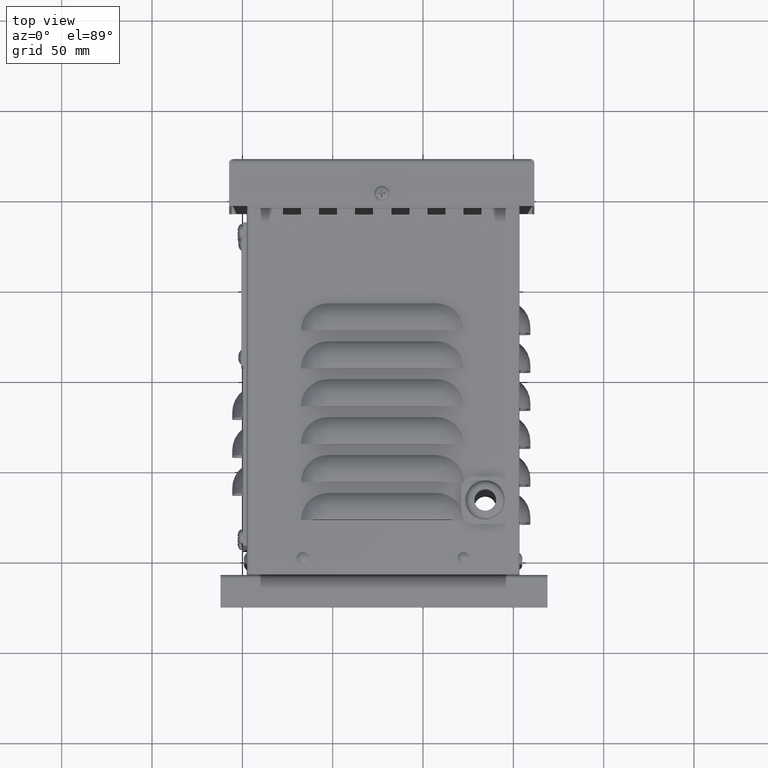
[diagram: clean part render]
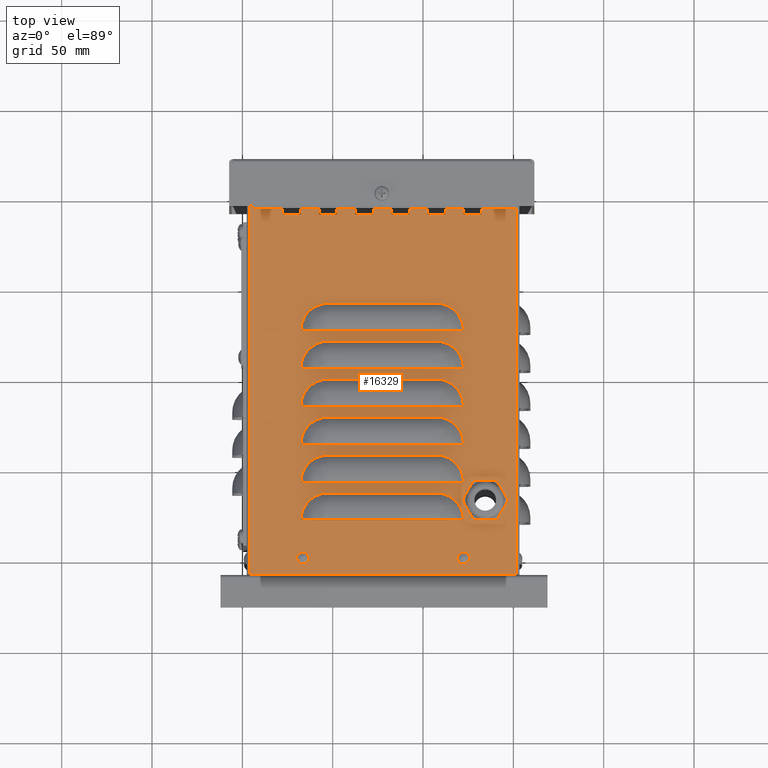
[diagram: same view with one face highlighted and labeled with its STEP entity id]
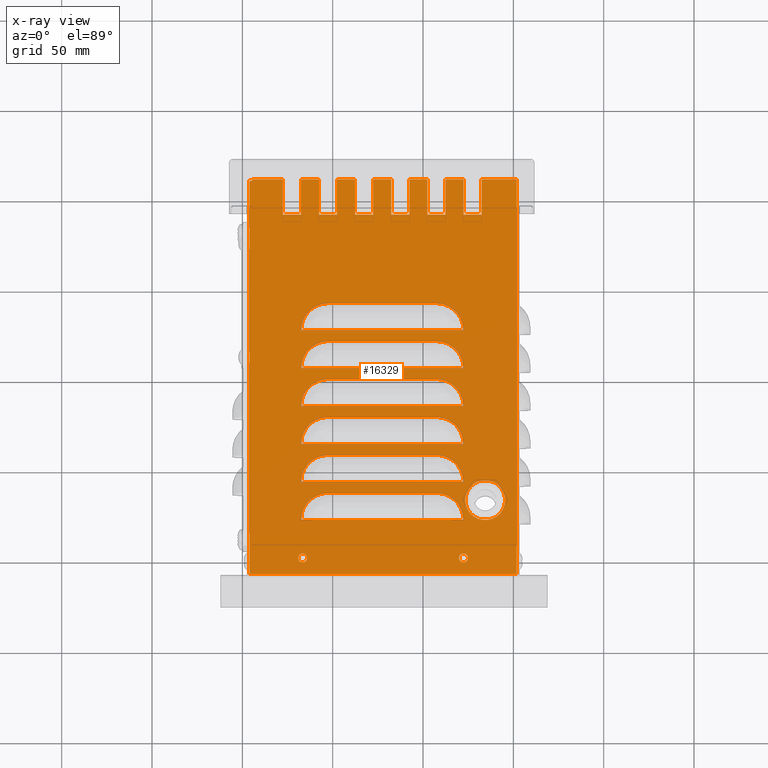
[diagram: x-ray of the same camera — body ghosted, the highlighted face saturated]
A machine part, top view. The second image highlights one B-rep face of the part: STEP entity #16329.
The next image is the same camera in x-ray: the body ghosted, the highlighted face saturated — about 0% of this face is hidden behind the body in this view.
In plain terms, the highlighted planar face has unit normal (0, -0, -1).
Its self-contained STEP definition (entity closure, byte-faithful):
#417=FACE_BOUND('',#3282,.T.);
#418=FACE_BOUND('',#3283,.T.);
#419=FACE_BOUND('',#3284,.T.);
#420=FACE_BOUND('',#3285,.T.);
#421=FACE_BOUND('',#3286,.T.);
#422=FACE_BOUND('',#3287,.T.);
#423=FACE_BOUND('',#3288,.T.);
#424=FACE_BOUND('',#3289,.T.);
#425=FACE_BOUND('',#3290,.T.);
#833=PLANE('',#17702);
#2349=FACE_OUTER_BOUND('',#3281,.T.);
#3281=EDGE_LOOP('',(#13522,#13523,#13524,#13525,#13526,#13527,#13528,#13529,
#13530,#13531,#13532,#13533,#13534,#13535,#13536,#13537,#13538,#13539,#13540,
#13541,#13542,#13543,#13544,#13545,#13546,#13547,#13548,#13549,#13550,#13551));
#3282=EDGE_LOOP('',(#13552,#13553,#13554,#13555,#13556,#13557));
#3283=EDGE_LOOP('',(#13558,#13559,#13560,#13561,#13562,#13563));
#3284=EDGE_LOOP('',(#13564,#13565,#13566,#13567,#13568,#13569));
#3285=EDGE_LOOP('',(#13570,#13571,#13572,#13573,#13574,#13575));
#3286=EDGE_LOOP('',(#13576,#13577,#13578,#13579,#13580,#13581));
#3287=EDGE_LOOP('',(#13582,#13583,#13584,#13585,#13586,#13587));
#3288=EDGE_LOOP('',(#13588));
#3289=EDGE_LOOP('',(#13589));
#3290=EDGE_LOOP('',(#13590));
#3893=LINE('',#22981,#5446);
#3894=LINE('',#22982,#5447);
#3895=LINE('',#22983,#5448);
#3896=LINE('',#22984,#5449);
#3897=LINE('',#22985,#5450);
#3898=LINE('',#22986,#5451);
#3899=LINE('',#22987,#5452);
#3904=LINE('',#23002,#5457);
#3912=LINE('',#23020,#5465);
#3915=LINE('',#23027,#5468);
#3953=LINE('',#23131,#5506);
#3955=LINE('',#23135,#5508);
#3956=LINE('',#23138,#5509);
#3959=LINE('',#23143,#5512);
#3960=LINE('',#23146,#5513);
#3963=LINE('',#23151,#5516);
#3964=LINE('',#23154,#5517);
#4102=LINE('',#23473,#5655);
#4111=LINE('',#23519,#5664);
#4120=LINE('',#23565,#5673);
#4129=LINE('',#23611,#5682);
#4138=LINE('',#23657,#5691);
#4144=LINE('',#23728,#5697);
#4147=LINE('',#23733,#5700);
#4148=LINE('',#23734,#5701);
#4149=LINE('',#23770,#5702);
#4152=LINE('',#23775,#5705);
#4153=LINE('',#23776,#5706);
#4154=LINE('',#23812,#5707);
#4157=LINE('',#23817,#5710);
#4158=LINE('',#23818,#5711);
#4159=LINE('',#23854,#5712);
#4162=LINE('',#23859,#5715);
#4163=LINE('',#23860,#5716);
#4164=LINE('',#23896,#5717);
#4167=LINE('',#23901,#5720);
#4168=LINE('',#23902,#5721);
#4172=LINE('',#23913,#5725);
#4178=LINE('',#23984,#5731);
#4181=LINE('',#23989,#5734);
#4182=LINE('',#23990,#5735);
#4255=LINE('',#24497,#5808);
#4257=LINE('',#24500,#5810);
#4258=LINE('',#24502,#5811);
#4259=LINE('',#24505,#5812);
#4261=LINE('',#24508,#5814);
#4264=LINE('',#24519,#5817);
#4266=LINE('',#24522,#5819);
#4267=LINE('',#24525,#5820);
#4269=LINE('',#24528,#5822);
#4270=LINE('',#24531,#5823);
#4272=LINE('',#24534,#5825);
#4697=LINE('',#25826,#6250);
#4698=LINE('',#25828,#6251);
#5446=VECTOR('',#18545,10.);
#5447=VECTOR('',#18546,10.);
#5448=VECTOR('',#18547,10.);
#5449=VECTOR('',#18548,10.);
#5450=VECTOR('',#18549,10.);
#5451=VECTOR('',#18550,10.);
#5452=VECTOR('',#18551,10.);
#5457=VECTOR('',#18566,10.);
#5465=VECTOR('',#18580,10.);
#5468=VECTOR('',#18587,10.);
#5506=VECTOR('',#18667,10.);
#5508=VECTOR('',#18671,10.);
#5509=VECTOR('',#18674,10.);
#5512=VECTOR('',#18679,10.);
#5513=VECTOR('',#18682,10.);
#5516=VECTOR('',#18687,10.);
#5517=VECTOR('',#18690,10.);
#5655=VECTOR('',#18954,10.);
#5664=VECTOR('',#18985,10.);
#5673=VECTOR('',#19016,10.);
#5682=VECTOR('',#19047,10.);
#5691=VECTOR('',#19078,10.);
#5697=VECTOR('',#19118,10.);
#5700=VECTOR('',#19125,10.);
#5701=VECTOR('',#19126,10.);
#5702=VECTOR('',#19145,10.);
#5705=VECTOR('',#19152,10.);
#5706=VECTOR('',#19153,10.);
#5707=VECTOR('',#19172,10.);
#5710=VECTOR('',#19179,10.);
#5711=VECTOR('',#19180,10.);
#5712=VECTOR('',#19199,10.);
#5715=VECTOR('',#19206,10.);
#5716=VECTOR('',#19207,10.);
#5717=VECTOR('',#19226,10.);
#5720=VECTOR('',#19233,10.);
#5721=VECTOR('',#19234,10.);
#5725=VECTOR('',#19244,10.);
#5731=VECTOR('',#19284,10.);
#5734=VECTOR('',#19291,10.);
#5735=VECTOR('',#19292,10.);
#5808=VECTOR('',#19631,10.);
#5810=VECTOR('',#19635,10.);
#5811=VECTOR('',#19638,10.);
#5812=VECTOR('',#19641,10.);
#5814=VECTOR('',#19645,10.);
#5817=VECTOR('',#19658,10.);
#5819=VECTOR('',#19662,10.);
#5820=VECTOR('',#19665,10.);
#5822=VECTOR('',#19669,10.);
#5823=VECTOR('',#19672,10.);
#5825=VECTOR('',#19676,10.);
#6250=VECTOR('',#20727,10.);
#6251=VECTOR('',#20730,10.);
#7030=CIRCLE('',#17163,14.9999999999993);
#7036=CIRCLE('',#17169,14.9999999999989);
#7038=CIRCLE('',#17174,14.9999999999993);
#7044=CIRCLE('',#17180,14.9999999999989);
#7046=CIRCLE('',#17185,14.9999999999993);
#7052=CIRCLE('',#17191,14.9999999999989);
#7054=CIRCLE('',#17196,14.9999999999993);
#7060=CIRCLE('',#17202,14.9999999999989);
#7062=CIRCLE('',#17207,14.9999999999993);
#7068=CIRCLE('',#17213,14.9999999999989);
#7076=CIRCLE('',#17229,14.9999999999993);
#7082=CIRCLE('',#17235,14.9999999999989);
#7167=CIRCLE('',#17377,2.4);
#7168=CIRCLE('',#17379,2.4);
#7169=CIRCLE('',#17387,11.);
#7594=VERTEX_POINT('',#22892);
#7596=VERTEX_POINT('',#22896);
#7598=VERTEX_POINT('',#22901);
#7600=VERTEX_POINT('',#22905);
#7602=VERTEX_POINT('',#22910);
#7604=VERTEX_POINT('',#22914);
#7606=VERTEX_POINT('',#22919);
#7608=VERTEX_POINT('',#22923);
#7610=VERTEX_POINT('',#22928);
#7612=VERTEX_POINT('',#22932);
#7614=VERTEX_POINT('',#22937);
#7616=VERTEX_POINT('',#22941);
#7623=VERTEX_POINT('',#22970);
#7624=VERTEX_POINT('',#22974);
#7629=VERTEX_POINT('',#23001);
#7636=VERTEX_POINT('',#23018);
#7638=VERTEX_POINT('',#23025);
#7683=VERTEX_POINT('',#23129);
#7684=VERTEX_POINT('',#23133);
#7685=VERTEX_POINT('',#23137);
#7686=VERTEX_POINT('',#23141);
#7687=VERTEX_POINT('',#23145);
#7688=VERTEX_POINT('',#23149);
#7689=VERTEX_POINT('',#23153);
#7804=VERTEX_POINT('',#23464);
#7807=VERTEX_POINT('',#23472);
#7812=VERTEX_POINT('',#23510);
#7815=VERTEX_POINT('',#23518);
#7820=VERTEX_POINT('',#23556);
#7823=VERTEX_POINT('',#23564);
#7828=VERTEX_POINT('',#23602);
#7831=VERTEX_POINT('',#23610);
#7836=VERTEX_POINT('',#23648);
#7839=VERTEX_POINT('',#23656);
#7845=VERTEX_POINT('',#23703);
#7846=VERTEX_POINT('',#23705);
#7848=VERTEX_POINT('',#23719);
#7851=VERTEX_POINT('',#23724);
#7853=VERTEX_POINT('',#23745);
#7854=VERTEX_POINT('',#23747);
#7856=VERTEX_POINT('',#23761);
#7859=VERTEX_POINT('',#23766);
#7861=VERTEX_POINT('',#23787);
#7862=VERTEX_POINT('',#23789);
#7864=VERTEX_POINT('',#23803);
#7867=VERTEX_POINT('',#23808);
#7869=VERTEX_POINT('',#23829);
#7870=VERTEX_POINT('',#23831);
#7872=VERTEX_POINT('',#23845);
#7875=VERTEX_POINT('',#23850);
#7877=VERTEX_POINT('',#23871);
#7878=VERTEX_POINT('',#23873);
#7880=VERTEX_POINT('',#23887);
#7883=VERTEX_POINT('',#23892);
#7884=VERTEX_POINT('',#23904);
#7887=VERTEX_POINT('',#23912);
#7893=VERTEX_POINT('',#23959);
#7894=VERTEX_POINT('',#23961);
#7896=VERTEX_POINT('',#23975);
#7899=VERTEX_POINT('',#23980);
#7984=VERTEX_POINT('',#24496);
#7985=VERTEX_POINT('',#24504);
#7986=VERTEX_POINT('',#24510);
#7987=VERTEX_POINT('',#24514);
#7988=VERTEX_POINT('',#24518);
#7989=VERTEX_POINT('',#24524);
#7990=VERTEX_POINT('',#24530);
#7991=VERTEX_POINT('',#24536);
#8328=VERTEX_POINT('',#25824);
#9037=EDGE_CURVE('',#7614,#7623,#3893,.T.);
#9038=EDGE_CURVE('',#7610,#7616,#3894,.T.);
#9039=EDGE_CURVE('',#7606,#7612,#3895,.T.);
#9040=EDGE_CURVE('',#7602,#7608,#3896,.T.);
#9041=EDGE_CURVE('',#7598,#7604,#3897,.T.);
#9042=EDGE_CURVE('',#7594,#7600,#3898,.T.);
#9043=EDGE_CURVE('',#7624,#7596,#3899,.T.);
#9050=EDGE_CURVE('',#7629,#7624,#3904,.T.);
#9059=EDGE_CURVE('',#7623,#7636,#3912,.T.);
#9063=EDGE_CURVE('',#7636,#7638,#3915,.T.);
#9118=EDGE_CURVE('',#7596,#7683,#3953,.T.);
#9120=EDGE_CURVE('',#7600,#7684,#3955,.T.);
#9121=EDGE_CURVE('',#7685,#7614,#3956,.T.);
#9124=EDGE_CURVE('',#7604,#7686,#3959,.T.);
#9125=EDGE_CURVE('',#7687,#7610,#3960,.T.);
#9128=EDGE_CURVE('',#7608,#7688,#3963,.T.);
#9129=EDGE_CURVE('',#7689,#7606,#3964,.T.);
#9294=EDGE_CURVE('',#7804,#7807,#4102,.T.);
#9309=EDGE_CURVE('',#7812,#7815,#4111,.T.);
#9324=EDGE_CURVE('',#7820,#7823,#4120,.T.);
#9339=EDGE_CURVE('',#7828,#7831,#4129,.T.);
#9354=EDGE_CURVE('',#7836,#7839,#4138,.T.);
#9366=EDGE_CURVE('',#7846,#7845,#7030,.T.);
#9372=EDGE_CURVE('',#7848,#7851,#7036,.T.);
#9373=EDGE_CURVE('',#7845,#7848,#4144,.T.);
#9376=EDGE_CURVE('',#7851,#7804,#4147,.T.);
#9377=EDGE_CURVE('',#7807,#7846,#4148,.T.);
#9379=EDGE_CURVE('',#7854,#7853,#7038,.T.);
#9385=EDGE_CURVE('',#7856,#7859,#7044,.T.);
#9386=EDGE_CURVE('',#7853,#7856,#4149,.T.);
#9389=EDGE_CURVE('',#7859,#7812,#4152,.T.);
#9390=EDGE_CURVE('',#7815,#7854,#4153,.T.);
#9392=EDGE_CURVE('',#7862,#7861,#7046,.T.);
#9398=EDGE_CURVE('',#7864,#7867,#7052,.T.);
#9399=EDGE_CURVE('',#7861,#7864,#4154,.T.);
#9402=EDGE_CURVE('',#7867,#7820,#4157,.T.);
#9403=EDGE_CURVE('',#7823,#7862,#4158,.T.);
#9405=EDGE_CURVE('',#7870,#7869,#7054,.T.);
#9411=EDGE_CURVE('',#7872,#7875,#7060,.T.);
#9412=EDGE_CURVE('',#7869,#7872,#4159,.T.);
#9415=EDGE_CURVE('',#7875,#7828,#4162,.T.);
#9416=EDGE_CURVE('',#7831,#7870,#4163,.T.);
#9418=EDGE_CURVE('',#7878,#7877,#7062,.T.);
#9424=EDGE_CURVE('',#7880,#7883,#7068,.T.);
#9425=EDGE_CURVE('',#7877,#7880,#4164,.T.);
#9428=EDGE_CURVE('',#7883,#7836,#4167,.T.);
#9429=EDGE_CURVE('',#7839,#7878,#4168,.T.);
#9434=EDGE_CURVE('',#7884,#7887,#4172,.T.);
#9446=EDGE_CURVE('',#7894,#7893,#7076,.T.);
#9452=EDGE_CURVE('',#7896,#7899,#7082,.T.);
#9453=EDGE_CURVE('',#7893,#7896,#4178,.T.);
#9456=EDGE_CURVE('',#7899,#7884,#4181,.T.);
#9457=EDGE_CURVE('',#7887,#7894,#4182,.T.);
#9614=EDGE_CURVE('',#7984,#7685,#4255,.T.);
#9616=EDGE_CURVE('',#7616,#7984,#4257,.T.);
#9617=EDGE_CURVE('',#7688,#7689,#4258,.T.);
#9618=EDGE_CURVE('',#7985,#7598,#4259,.T.);
#9620=EDGE_CURVE('',#7684,#7985,#4261,.T.);
#9621=EDGE_CURVE('',#7986,#7986,#7167,.T.);
#9623=EDGE_CURVE('',#7987,#7987,#7168,.T.);
#9625=EDGE_CURVE('',#7988,#7594,#4264,.T.);
#9627=EDGE_CURVE('',#7683,#7988,#4266,.T.);
#9628=EDGE_CURVE('',#7989,#7602,#4267,.T.);
#9630=EDGE_CURVE('',#7686,#7989,#4269,.T.);
#9631=EDGE_CURVE('',#7990,#7687,#4270,.T.);
#9633=EDGE_CURVE('',#7612,#7990,#4272,.T.);
#9634=EDGE_CURVE('',#7991,#7991,#7169,.T.);
#10185=EDGE_CURVE('',#7638,#8328,#4697,.T.);
#10186=EDGE_CURVE('',#7629,#8328,#4698,.T.);
#13522=ORIENTED_EDGE('',*,*,#9063,.T.);
#13523=ORIENTED_EDGE('',*,*,#10185,.T.);
#13524=ORIENTED_EDGE('',*,*,#10186,.F.);
#13525=ORIENTED_EDGE('',*,*,#9050,.T.);
#13526=ORIENTED_EDGE('',*,*,#9043,.T.);
#13527=ORIENTED_EDGE('',*,*,#9118,.T.);
#13528=ORIENTED_EDGE('',*,*,#9627,.T.);
#13529=ORIENTED_EDGE('',*,*,#9625,.T.);
#13530=ORIENTED_EDGE('',*,*,#9042,.T.);
#13531=ORIENTED_EDGE('',*,*,#9120,.T.);
#13532=ORIENTED_EDGE('',*,*,#9620,.T.);
#13533=ORIENTED_EDGE('',*,*,#9618,.T.);
#13534=ORIENTED_EDGE('',*,*,#9041,.T.);
#13535=ORIENTED_EDGE('',*,*,#9124,.T.);
#13536=ORIENTED_EDGE('',*,*,#9630,.T.);
#13537=ORIENTED_EDGE('',*,*,#9628,.T.);
#13538=ORIENTED_EDGE('',*,*,#9040,.T.);
#13539=ORIENTED_EDGE('',*,*,#9128,.T.);
#13540=ORIENTED_EDGE('',*,*,#9617,.T.);
#13541=ORIENTED_EDGE('',*,*,#9129,.T.);
#13542=ORIENTED_EDGE('',*,*,#9039,.T.);
#13543=ORIENTED_EDGE('',*,*,#9633,.T.);
#13544=ORIENTED_EDGE('',*,*,#9631,.T.);
#13545=ORIENTED_EDGE('',*,*,#9125,.T.);
#13546=ORIENTED_EDGE('',*,*,#9038,.T.);
#13547=ORIENTED_EDGE('',*,*,#9616,.T.);
#13548=ORIENTED_EDGE('',*,*,#9614,.T.);
#13549=ORIENTED_EDGE('',*,*,#9121,.T.);
#13550=ORIENTED_EDGE('',*,*,#9037,.T.);
#13551=ORIENTED_EDGE('',*,*,#9059,.T.);
#13552=ORIENTED_EDGE('',*,*,#9372,.T.);
#13553=ORIENTED_EDGE('',*,*,#9376,.T.);
#13554=ORIENTED_EDGE('',*,*,#9294,.T.);
#13555=ORIENTED_EDGE('',*,*,#9377,.T.);
#13556=ORIENTED_EDGE('',*,*,#9366,.T.);
#13557=ORIENTED_EDGE('',*,*,#9373,.T.);
#13558=ORIENTED_EDGE('',*,*,#9385,.T.);
#13559=ORIENTED_EDGE('',*,*,#9389,.T.);
#13560=ORIENTED_EDGE('',*,*,#9309,.T.);
#13561=ORIENTED_EDGE('',*,*,#9390,.T.);
#13562=ORIENTED_EDGE('',*,*,#9379,.T.);
#13563=ORIENTED_EDGE('',*,*,#9386,.T.);
#13564=ORIENTED_EDGE('',*,*,#9398,.T.);
#13565=ORIENTED_EDGE('',*,*,#9402,.T.);
#13566=ORIENTED_EDGE('',*,*,#9324,.T.);
#13567=ORIENTED_EDGE('',*,*,#9403,.T.);
#13568=ORIENTED_EDGE('',*,*,#9392,.T.);
#13569=ORIENTED_EDGE('',*,*,#9399,.T.);
#13570=ORIENTED_EDGE('',*,*,#9411,.T.);
#13571=ORIENTED_EDGE('',*,*,#9415,.T.);
#13572=ORIENTED_EDGE('',*,*,#9339,.T.);
#13573=ORIENTED_EDGE('',*,*,#9416,.T.);
#13574=ORIENTED_EDGE('',*,*,#9405,.T.);
#13575=ORIENTED_EDGE('',*,*,#9412,.T.);
#13576=ORIENTED_EDGE('',*,*,#9424,.T.);
#13577=ORIENTED_EDGE('',*,*,#9428,.T.);
#13578=ORIENTED_EDGE('',*,*,#9354,.T.);
#13579=ORIENTED_EDGE('',*,*,#9429,.T.);
#13580=ORIENTED_EDGE('',*,*,#9418,.T.);
#13581=ORIENTED_EDGE('',*,*,#9425,.T.);
#13582=ORIENTED_EDGE('',*,*,#9452,.T.);
#13583=ORIENTED_EDGE('',*,*,#9456,.T.);
#13584=ORIENTED_EDGE('',*,*,#9434,.T.);
#13585=ORIENTED_EDGE('',*,*,#9457,.T.);
#13586=ORIENTED_EDGE('',*,*,#9446,.T.);
#13587=ORIENTED_EDGE('',*,*,#9453,.T.);
#13588=ORIENTED_EDGE('',*,*,#9621,.T.);
#13589=ORIENTED_EDGE('',*,*,#9623,.T.);
#13590=ORIENTED_EDGE('',*,*,#9634,.T.);
#16329=ADVANCED_FACE('',(#2349,#417,#418,#419,#420,#421,#422,#423,#424,
#425),#833,.F.);
#17163=AXIS2_PLACEMENT_3D('',#23706,#19102,#19103);
#17169=AXIS2_PLACEMENT_3D('',#23726,#19114,#19115);
#17174=AXIS2_PLACEMENT_3D('',#23748,#19129,#19130);
#17180=AXIS2_PLACEMENT_3D('',#23768,#19141,#19142);
#17185=AXIS2_PLACEMENT_3D('',#23790,#19156,#19157);
#17191=AXIS2_PLACEMENT_3D('',#23810,#19168,#19169);
#17196=AXIS2_PLACEMENT_3D('',#23832,#19183,#19184);
#17202=AXIS2_PLACEMENT_3D('',#23852,#19195,#19196);
#17207=AXIS2_PLACEMENT_3D('',#23874,#19210,#19211);
#17213=AXIS2_PLACEMENT_3D('',#23894,#19222,#19223);
#17229=AXIS2_PLACEMENT_3D('',#23962,#19268,#19269);
#17235=AXIS2_PLACEMENT_3D('',#23982,#19280,#19281);
#17377=AXIS2_PLACEMENT_3D('',#24511,#19648,#19649);
#17379=AXIS2_PLACEMENT_3D('',#24515,#19653,#19654);
#17387=AXIS2_PLACEMENT_3D('',#24537,#19679,#19680);
#17702=AXIS2_PLACEMENT_3D('',#25832,#20736,#20737);
#18545=DIRECTION('',(-1.,-1.88835437964762E-44,-5.50107055013745E-15));
#18546=DIRECTION('',(-1.,-1.88835437964762E-44,-5.50107055013745E-15));
#18547=DIRECTION('',(-1.,-1.88835437964762E-44,-5.50107055013745E-15));
#18548=DIRECTION('',(-1.,-1.88835437964762E-44,-5.50107055013745E-15));
#18549=DIRECTION('',(-1.,-1.88835437964762E-44,-5.50107055013745E-15));
#18550=DIRECTION('',(-1.,-1.88835437964762E-44,-5.50107055013745E-15));
#18551=DIRECTION('',(-1.,-1.88835437964762E-44,-5.50107055013745E-15));
#18566=DIRECTION('',(0.,1.,3.23491557291712E-18));
#18580=DIRECTION('',(-3.70104952274204E-32,-1.,-3.23491557291712E-18));
#18587=DIRECTION('',(-1.,-1.88835437964762E-44,-5.50107055013745E-15));
#18667=DIRECTION('',(-8.70555800824187E-31,-1.,-3.23491557291712E-18));
#18671=DIRECTION('',(-8.70555800824187E-31,-1.,-3.23491557291712E-18));
#18674=DIRECTION('',(8.70555800824187E-31,1.,3.23491557291712E-18));
#18679=DIRECTION('',(8.88178419700124E-16,-1.,-3.23491557291223E-18));
#18682=DIRECTION('',(8.70555800824187E-31,1.,3.23491557291712E-18));
#18687=DIRECTION('',(-8.70555800824187E-31,-1.,-3.23491557291712E-18));
#18690=DIRECTION('',(8.70555800824187E-31,1.,3.23491557291712E-18));
#18954=DIRECTION('',(-1.,-6.03530546199477E-20,-5.50107055013745E-15));
#18985=DIRECTION('',(-1.,-6.03530546199477E-20,-5.50107055013745E-15));
#19016=DIRECTION('',(-1.,-6.03530546199477E-20,-5.50107055013745E-15));
#19047=DIRECTION('',(-1.,-6.03530546199477E-20,-5.50107055013745E-15));
#19078=DIRECTION('',(-1.,-6.03530546199477E-20,-5.50107055013745E-15));
#19102=DIRECTION('center_axis',(-2.7849006844755E-15,1.61745778645814E-18,
-1.));
#19103=DIRECTION('ref_axis',(-1.,0.,2.7849006844755E-15));
#19114=DIRECTION('center_axis',(-2.7849006844755E-15,1.61745778645814E-18,
-1.));
#19115=DIRECTION('ref_axis',(1.,0.,-2.7849006844755E-15));
#19118=DIRECTION('',(1.,-2.95999120178755E-16,-1.10708719190885E-14));
#19125=DIRECTION('',(-1.,-6.03530546199477E-20,-5.50107055013745E-15));
#19126=DIRECTION('',(-1.,-6.03530546199477E-20,-5.50107055013745E-15));
#19129=DIRECTION('center_axis',(-2.7849006844755E-15,1.61745778645814E-18,
-1.));
#19130=DIRECTION('ref_axis',(-1.,0.,2.7849006844755E-15));
#19141=DIRECTION('center_axis',(-2.7849006844755E-15,1.61745778645814E-18,
-1.));
#19142=DIRECTION('ref_axis',(1.,0.,-2.7849006844755E-15));
#19145=DIRECTION('',(1.,-2.95999120178755E-16,-1.10708719190885E-14));
#19152=DIRECTION('',(-1.,-6.03530546199477E-20,-5.50107055013745E-15));
#19153=DIRECTION('',(-1.,-6.03530546199477E-20,-5.50107055013745E-15));
#19156=DIRECTION('center_axis',(-2.7849006844755E-15,1.61745778645814E-18,
-1.));
#19157=DIRECTION('ref_axis',(-1.,0.,2.7849006844755E-15));
#19168=DIRECTION('center_axis',(-2.7849006844755E-15,1.61745778645814E-18,
-1.));
#19169=DIRECTION('ref_axis',(1.,0.,-2.7849006844755E-15));
#19172=DIRECTION('',(1.,-2.95999120178755E-16,-1.10708719190885E-14));
#19179=DIRECTION('',(-1.,-6.03530546199477E-20,-5.50107055013745E-15));
#19180=DIRECTION('',(-1.,-6.03530546199477E-20,-5.50107055013745E-15));
#19183=DIRECTION('center_axis',(-2.7849006844755E-15,1.61745778645814E-18,
-1.));
#19184=DIRECTION('ref_axis',(-1.,0.,2.7849006844755E-15));
#19195=DIRECTION('center_axis',(-2.7849006844755E-15,1.61745778645814E-18,
-1.));
#19196=DIRECTION('ref_axis',(1.,0.,-2.7849006844755E-15));
#19199=DIRECTION('',(1.,-2.95999120178755E-16,-1.10708719190885E-14));
#19206=DIRECTION('',(-1.,-6.03530546199477E-20,-5.50107055013745E-15));
#19207=DIRECTION('',(-1.,-6.03530546199477E-20,-5.50107055013745E-15));
#19210=DIRECTION('center_axis',(-2.7849006844755E-15,1.61745778645814E-18,
-1.));
#19211=DIRECTION('ref_axis',(-1.,0.,2.7849006844755E-15));
#19222=DIRECTION('center_axis',(-2.7849006844755E-15,1.61745778645814E-18,
-1.));
#19223=DIRECTION('ref_axis',(1.,0.,-2.7849006844755E-15));
#19226=DIRECTION('',(1.,-2.95999120178755E-16,-1.10708719190885E-14));
#19233=DIRECTION('',(-1.,-6.03530546199477E-20,-5.50107055013745E-15));
#19234=DIRECTION('',(-1.,-6.03530546199477E-20,-5.50107055013745E-15));
#19244=DIRECTION('',(-1.,-6.03530546199477E-20,-5.50107055013745E-15));
#19268=DIRECTION('center_axis',(-2.7849006844755E-15,1.61745778645814E-18,
-1.));
#19269=DIRECTION('ref_axis',(-1.,0.,2.7849006844755E-15));
#19280=DIRECTION('center_axis',(-2.7849006844755E-15,1.61745778645814E-18,
-1.));
#19281=DIRECTION('ref_axis',(1.,0.,-2.7849006844755E-15));
#19284=DIRECTION('',(1.,-2.95999120178755E-16,-1.10708719190885E-14));
#19291=DIRECTION('',(-1.,-6.03530546199477E-20,-5.50107055013745E-15));
#19292=DIRECTION('',(-1.,-6.03530546199477E-20,-5.50107055013745E-15));
#19631=DIRECTION('',(-1.,8.88351299614542E-31,-5.50107055013745E-15));
#19635=DIRECTION('',(-8.70555800824187E-31,-1.,-3.23491557291712E-18));
#19638=DIRECTION('',(-1.,8.88351299614542E-31,-5.50107055013745E-15));
#19641=DIRECTION('',(8.70555800824187E-31,1.,3.23491557291712E-18));
#19645=DIRECTION('',(-1.,8.88351299614542E-31,-5.50107055013745E-15));
#19648=DIRECTION('center_axis',(5.50107055013745E-15,3.23491557291712E-18,
-1.));
#19649=DIRECTION('ref_axis',(-1.,8.88351299614542E-31,-5.92118946466756E-15));
#19653=DIRECTION('center_axis',(5.50107055013745E-15,3.23491557291712E-18,
-1.));
#19654=DIRECTION('ref_axis',(-1.,8.88351299614542E-31,0.));
#19658=DIRECTION('',(8.70555800824187E-31,1.,3.23491557291712E-18));
#19662=DIRECTION('',(-1.,8.88351299614542E-31,-5.50107055013745E-15));
#19665=DIRECTION('',(8.70555800824187E-31,1.,3.23491557291712E-18));
#19669=DIRECTION('',(-1.,8.88351299614542E-31,-5.50107055013745E-15));
#19672=DIRECTION('',(-1.,8.88351299614542E-31,-5.50107055013745E-15));
#19676=DIRECTION('',(-8.70555800824187E-31,-1.,-3.23491557291712E-18));
#19679=DIRECTION('center_axis',(5.50107055013745E-15,3.23491557291712E-18,
-1.));
#19680=DIRECTION('ref_axis',(-1.,8.88351299614542E-31,0.));
#20727=DIRECTION('',(1.74371746585954E-32,-1.,-3.23491557291712E-18));
#20730=DIRECTION('',(-1.,-6.84335181084782E-14,-5.39030285815812E-15));
#20736=DIRECTION('center_axis',(5.50107055013745E-15,3.23491557291712E-18,
-1.));
#20737=DIRECTION('ref_axis',(-1.,0.,-5.50107055013745E-15));
#22892=CARTESIAN_POINT('',(120.000000000002,218.499000000002,219.999999999999));
#22896=CARTESIAN_POINT('',(130.000000000002,218.499000000002,219.999999999999));
#22901=CARTESIAN_POINT('',(100.000000000002,218.499000000002,220.));
#22905=CARTESIAN_POINT('',(110.000000000002,218.499000000002,219.999999999999));
#22910=CARTESIAN_POINT('',(80.0000000000022,218.499000000002,220.));
#22914=CARTESIAN_POINT('',(90.0000000000022,218.499000000002,220.));
#22919=CARTESIAN_POINT('',(60.0000000000022,218.499000000002,220.000000000001));
#22923=CARTESIAN_POINT('',(70.0000000000022,218.499000000002,220.000000000001));
#22928=CARTESIAN_POINT('',(40.0000000000022,218.499000000002,220.000000000001));
#22932=CARTESIAN_POINT('',(50.0000000000022,218.499000000002,220.000000000001));
#22937=CARTESIAN_POINT('',(20.0000000000022,218.499000000002,220.000000000002));
#22941=CARTESIAN_POINT('',(30.0000000000022,218.499000000002,220.000000000002));
#22970=CARTESIAN_POINT('',(3.00000000000254,218.499000000002,220.000000000003));
#22974=CARTESIAN_POINT('',(149.498999999999,218.499000000002,219.999999999998));
#22981=CARTESIAN_POINT('',(47.8656759069982,218.499000000002,220.));
#22982=CARTESIAN_POINT('',(57.8656759069982,218.499000000002,220.));
#22983=CARTESIAN_POINT('',(67.8656759069982,218.499000000002,220.));
#22984=CARTESIAN_POINT('',(77.8656759069982,218.499000000002,220.));
#22985=CARTESIAN_POINT('',(87.8656759069982,218.499000000002,220.000000000001));
#22986=CARTESIAN_POINT('',(97.8656759069982,218.499000000002,220.000000000001));
#22987=CARTESIAN_POINT('',(112.615175906997,218.499000000002,220.000000000001));
#23001=CARTESIAN_POINT('',(149.499,1.01280238130186E-11,220.000000000001));
#23002=CARTESIAN_POINT('',(149.499,165.,220.000000000001));
#23018=CARTESIAN_POINT('',(3.00000000000254,217.749000000002,220.000000000003));
#23020=CARTESIAN_POINT('',(3.00000000000254,165.,220.));
#23025=CARTESIAN_POINT('',(1.50099999999998,217.749000000002,220.));
#23027=CARTESIAN_POINT('',(39.3656759069984,217.749000000002,220.));
#23129=CARTESIAN_POINT('',(129.999999999999,199.,220.000000000001));
#23131=CARTESIAN_POINT('',(129.999999999999,164.5,220.000000000001));
#23133=CARTESIAN_POINT('',(109.999999999999,199.,220.000000000001));
#23135=CARTESIAN_POINT('',(109.999999999999,164.5,220.000000000001));
#23137=CARTESIAN_POINT('',(19.9999999999985,199.,220.));
#23138=CARTESIAN_POINT('',(19.9999999999985,154.5,220.));
#23141=CARTESIAN_POINT('',(89.9999999999986,199.,220.000000000001));
#23143=CARTESIAN_POINT('',(89.9999999999986,164.5,220.000000000001));
#23145=CARTESIAN_POINT('',(39.9999999999985,199.,220.));
#23146=CARTESIAN_POINT('',(39.9999999999985,154.5,220.));
#23149=CARTESIAN_POINT('',(69.9999999999985,199.,220.));
#23151=CARTESIAN_POINT('',(69.9999999999986,164.5,220.));
#23153=CARTESIAN_POINT('',(59.9999999999985,199.,220.));
#23154=CARTESIAN_POINT('',(59.9999999999985,154.5,220.));
#23464=CARTESIAN_POINT('',(117.797958971135,135.000000000003,220.000000000001));
#23472=CARTESIAN_POINT('',(32.2020410288698,135.000000000003,220.));
#23473=CARTESIAN_POINT('',(90.3656759069984,135.000000000003,220.000000000001));
#23510=CARTESIAN_POINT('',(117.797958971135,114.000000000003,220.000000000001));
#23518=CARTESIAN_POINT('',(32.2020410288698,114.000000000003,220.));
#23519=CARTESIAN_POINT('',(90.3656759069984,114.000000000003,220.000000000001));
#23556=CARTESIAN_POINT('',(117.797958971135,93.000000000003,220.000000000001));
#23564=CARTESIAN_POINT('',(32.2020410288698,93.000000000003,220.));
#23565=CARTESIAN_POINT('',(90.3656759069984,93.000000000003,220.000000000001));
#23602=CARTESIAN_POINT('',(117.797958971135,72.000000000003,220.000000000001));
#23610=CARTESIAN_POINT('',(32.2020410288698,72.000000000003,220.));
#23611=CARTESIAN_POINT('',(90.3656759069984,72.000000000003,220.000000000001));
#23648=CARTESIAN_POINT('',(117.797958971135,51.000000000003,220.000000000001));
#23656=CARTESIAN_POINT('',(32.2020410288698,51.000000000003,220.));
#23657=CARTESIAN_POINT('',(90.3656759069984,51.000000000003,220.000000000001));
#23703=CARTESIAN_POINT('',(45.0000000000025,150.000000000003,219.999999999999));
#23705=CARTESIAN_POINT('',(30.0000000000025,135.000000000003,220.));
#23706=CARTESIAN_POINT('Origin',(45.0000000000025,135.000000000003,220.000000000001));
#23719=CARTESIAN_POINT('',(105.000000000003,150.000000000003,219.999999999999));
#23724=CARTESIAN_POINT('',(120.000000000003,135.000000000003,219.999999999999));
#23726=CARTESIAN_POINT('Origin',(105.000000000002,135.000000000003,220.));
#23728=CARTESIAN_POINT('',(45.0000000000025,150.000000000002,220.));
#23733=CARTESIAN_POINT('',(90.3656759069984,135.000000000003,220.000000000001));
#23734=CARTESIAN_POINT('',(90.3656759069984,135.000000000003,220.000000000001));
#23745=CARTESIAN_POINT('',(45.0000000000025,129.000000000003,219.999999999999));
#23747=CARTESIAN_POINT('',(30.0000000000025,114.000000000003,220.));
#23748=CARTESIAN_POINT('Origin',(45.0000000000025,114.000000000003,220.000000000001));
#23761=CARTESIAN_POINT('',(105.000000000003,129.000000000003,219.999999999999));
#23766=CARTESIAN_POINT('',(120.000000000003,114.000000000003,219.999999999999));
#23768=CARTESIAN_POINT('Origin',(105.000000000002,114.000000000003,220.));
#23770=CARTESIAN_POINT('',(45.0000000000025,129.000000000002,220.));
#23775=CARTESIAN_POINT('',(90.3656759069984,114.000000000003,220.000000000001));
#23776=CARTESIAN_POINT('',(90.3656759069984,114.000000000003,220.000000000001));
#23787=CARTESIAN_POINT('',(45.0000000000025,108.000000000003,219.999999999999));
#23789=CARTESIAN_POINT('',(30.0000000000025,93.000000000003,220.));
#23790=CARTESIAN_POINT('Origin',(45.0000000000025,93.000000000003,220.000000000001));
#23803=CARTESIAN_POINT('',(105.000000000003,108.000000000003,219.999999999999));
#23808=CARTESIAN_POINT('',(120.000000000003,93.000000000003,219.999999999999));
#23810=CARTESIAN_POINT('Origin',(105.000000000002,93.000000000003,220.));
#23812=CARTESIAN_POINT('',(45.0000000000025,108.000000000002,220.));
#23817=CARTESIAN_POINT('',(90.3656759069984,93.000000000003,220.000000000001));
#23818=CARTESIAN_POINT('',(90.3656759069984,93.000000000003,220.000000000001));
#23829=CARTESIAN_POINT('',(45.0000000000025,87.000000000003,219.999999999999));
#23831=CARTESIAN_POINT('',(30.0000000000025,72.000000000003,220.));
#23832=CARTESIAN_POINT('Origin',(45.0000000000025,72.000000000003,220.000000000001));
#23845=CARTESIAN_POINT('',(105.000000000003,87.000000000003,219.999999999999));
#23850=CARTESIAN_POINT('',(120.000000000003,72.000000000003,219.999999999999));
#23852=CARTESIAN_POINT('Origin',(105.000000000002,72.000000000003,220.));
#23854=CARTESIAN_POINT('',(45.0000000000025,87.0000000000024,220.));
#23859=CARTESIAN_POINT('',(90.3656759069984,72.000000000003,220.000000000001));
#23860=CARTESIAN_POINT('',(90.3656759069984,72.000000000003,220.000000000001));
#23871=CARTESIAN_POINT('',(45.0000000000025,66.000000000003,219.999999999999));
#23873=CARTESIAN_POINT('',(30.0000000000025,51.000000000003,220.));
#23874=CARTESIAN_POINT('Origin',(45.0000000000025,51.000000000003,220.000000000001));
#23887=CARTESIAN_POINT('',(105.000000000003,66.000000000003,219.999999999999));
#23892=CARTESIAN_POINT('',(120.000000000003,51.000000000003,219.999999999999));
#23894=CARTESIAN_POINT('Origin',(105.000000000002,51.000000000003,220.));
#23896=CARTESIAN_POINT('',(45.0000000000025,66.0000000000024,220.));
#23901=CARTESIAN_POINT('',(90.3656759069984,51.000000000003,220.000000000001));
#23902=CARTESIAN_POINT('',(90.3656759069984,51.000000000003,220.000000000001));
#23904=CARTESIAN_POINT('',(117.797958971135,30.000000000003,220.000000000001));
#23912=CARTESIAN_POINT('',(32.2020410288698,30.000000000003,220.));
#23913=CARTESIAN_POINT('',(90.3656759069984,30.000000000003,220.000000000001));
#23959=CARTESIAN_POINT('',(45.0000000000025,45.000000000003,219.999999999999));
#23961=CARTESIAN_POINT('',(30.0000000000025,30.000000000003,220.));
#23962=CARTESIAN_POINT('Origin',(45.0000000000025,30.000000000003,220.000000000001));
#23975=CARTESIAN_POINT('',(105.000000000003,45.000000000003,219.999999999999));
#23980=CARTESIAN_POINT('',(120.000000000003,30.000000000003,219.999999999999));
#23982=CARTESIAN_POINT('Origin',(105.000000000002,30.000000000003,220.));
#23984=CARTESIAN_POINT('',(45.0000000000025,45.0000000000024,220.));
#23989=CARTESIAN_POINT('',(90.3656759069984,30.000000000003,220.000000000001));
#23990=CARTESIAN_POINT('',(90.3656759069984,30.000000000003,220.000000000001));
#24496=CARTESIAN_POINT('',(29.9999999999985,199.,220.));
#24497=CARTESIAN_POINT('',(52.8656759069964,199.,220.));
#24500=CARTESIAN_POINT('',(29.9999999999985,164.5,220.));
#24502=CARTESIAN_POINT('',(72.8656759069964,199.,220.));
#24504=CARTESIAN_POINT('',(99.9999999999985,199.,220.000000000001));
#24505=CARTESIAN_POINT('',(99.9999999999986,154.5,220.000000000001));
#24508=CARTESIAN_POINT('',(92.8656759069964,199.,220.000000000001));
#24510=CARTESIAN_POINT('',(33.399999999995,8.99892672184036,220.));
#24511=CARTESIAN_POINT('Origin',(30.999999999995,8.99892672184036,220.));
#24514=CARTESIAN_POINT('',(122.399999999995,9.00000000000811,220.000000000001));
#24515=CARTESIAN_POINT('Origin',(119.999999999995,9.00000000000811,220.));
#24518=CARTESIAN_POINT('',(119.999999999999,199.,220.000000000001));
#24519=CARTESIAN_POINT('',(119.999999999999,154.5,220.000000000001));
#24522=CARTESIAN_POINT('',(102.865675906996,199.,220.000000000001));
#24524=CARTESIAN_POINT('',(79.9999999999985,199.,220.));
#24525=CARTESIAN_POINT('',(79.9999999999985,154.5,220.));
#24528=CARTESIAN_POINT('',(82.8656759069964,199.,220.));
#24530=CARTESIAN_POINT('',(49.9999999999985,199.,220.));
#24531=CARTESIAN_POINT('',(62.8656759069964,199.,220.));
#24534=CARTESIAN_POINT('',(49.9999999999985,164.5,220.));
#24536=CARTESIAN_POINT('',(142.999999999996,41.0000000000149,220.000000000001));
#24537=CARTESIAN_POINT('Origin',(131.999999999996,41.0000000000149,220.));
#25824=CARTESIAN_POINT('',(1.50099999999998,0.,220.));
#25826=CARTESIAN_POINT('',(1.50099999999998,110.,220.));
#25828=CARTESIAN_POINT('',(0.462703627988574,-7.105427357601E-14,220.));
#25832=CARTESIAN_POINT('Origin',(75.7313518139943,110.,220.));